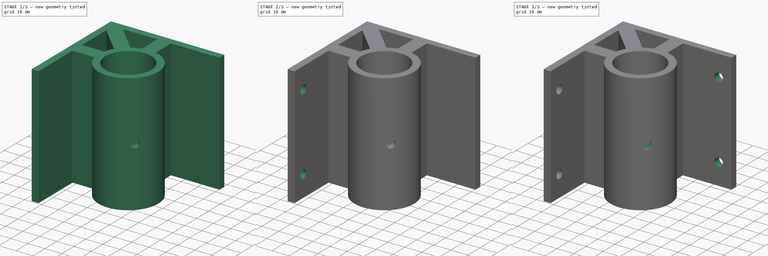
[diagram: build sequence overview — one tinted view per stage of 3, left to right]
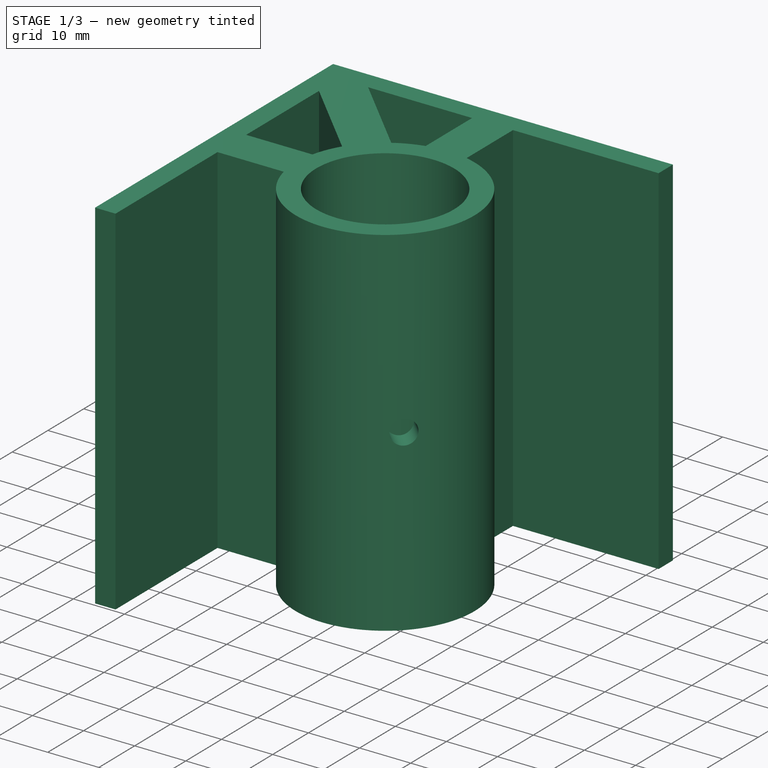
[diagram: stage 1 of 3 — iso view after this stage's code; geometry added in this stage tinted green]
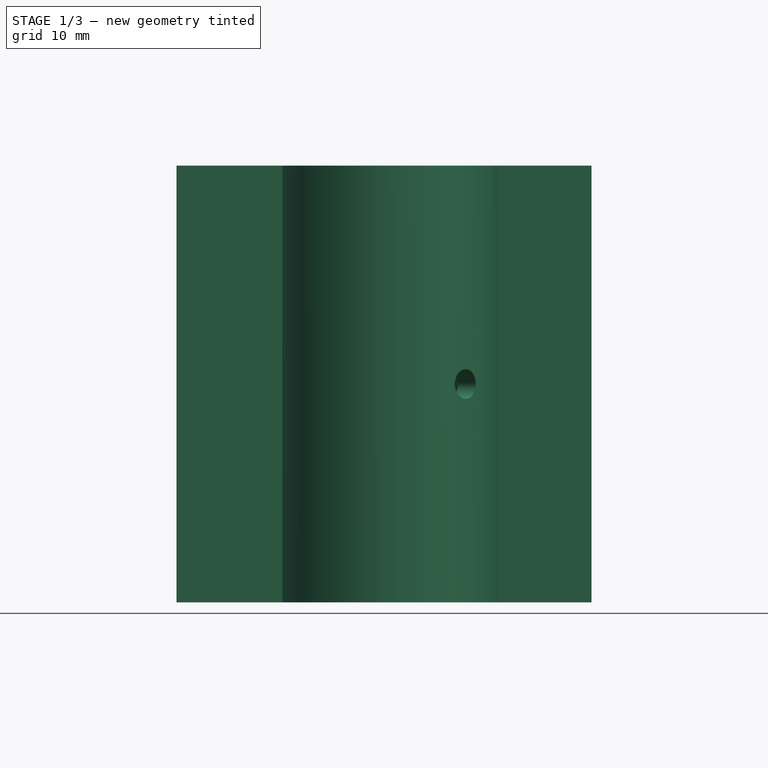
[diagram: stage 1 of 3 — front view after this stage's code; geometry added in this stage tinted green]
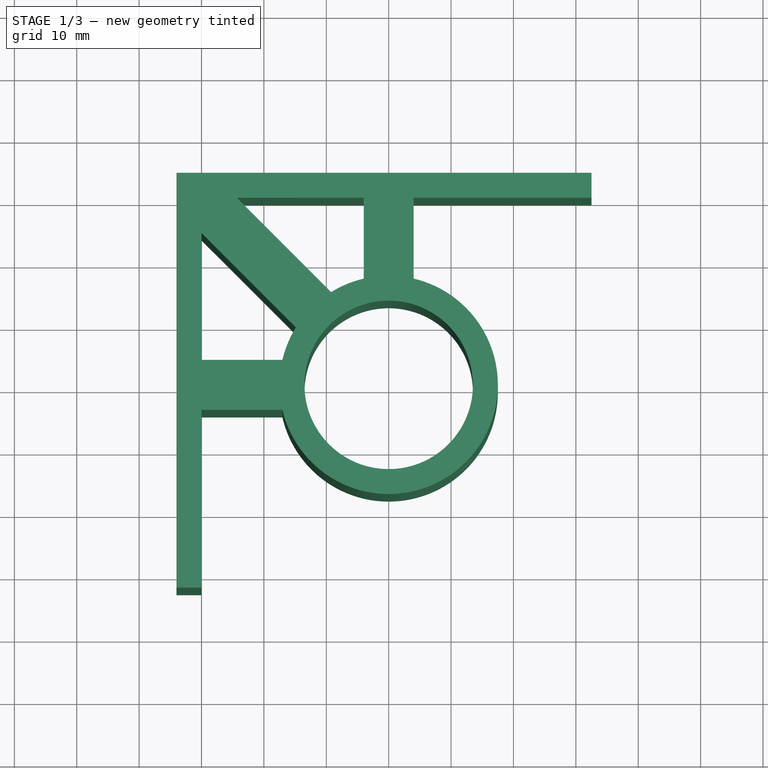
[diagram: stage 1 of 3 — top view after this stage's code; geometry added in this stage tinted green]
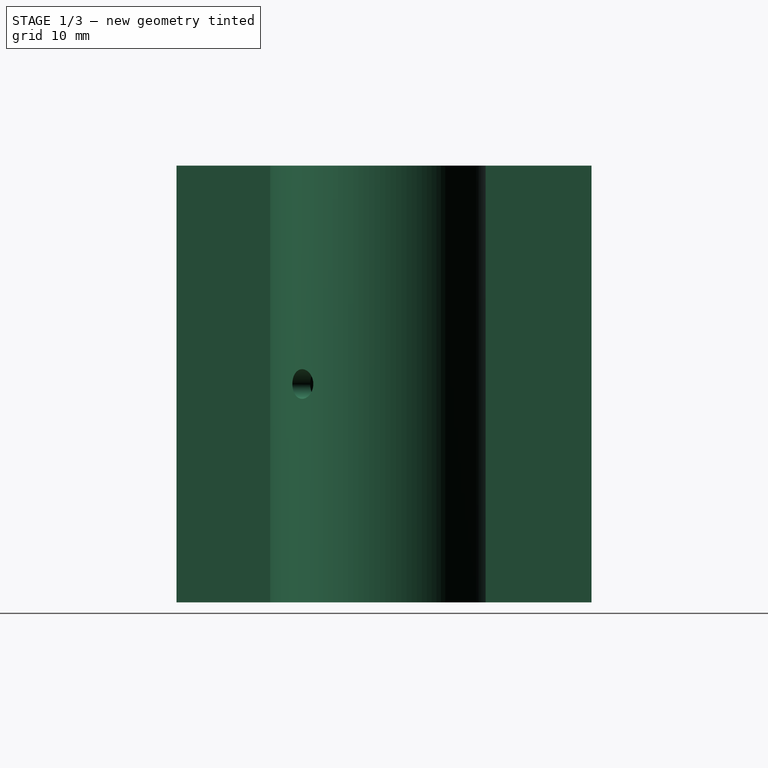
[diagram: stage 1 of 3 — right view after this stage's code; geometry added in this stage tinted green]
FCSTD DOCUMENT  (FreeCAD 2022.407R26244 +4693 (Git))
Label: flag pole mount
License: Creative Commons Attribution
LicenseURL: http://creativecommons.org/licenses/by/4.0/
objects: Sketcher::SketchObject×7, PartDesign::Pocket×3, PartDesign::Plane×2, PartDesign::Pad×1, PartDesign::Line×1, PartDesign::SubtractiveHelix×1, PartDesign::Body×1
note: 26 computed .brp shape members not serialized (recipe doc carries the construction recipe); baked Part::Feature solids carry a one-line shape summary decoded from their .brp

FEATURE [Sketcher::SketchObject] Sketch
  FullyConstrained = true
  MapMode = 5
  Support = -> [XY_Plane]
  TreeRank = 0
  sketch-geometry (26):
    g0: Circle CenterX=0 CenterY=0 CenterZ=0 NormalX=0 NormalY=0 NormalZ=1 AngleXU=0 Radius=13.5
    g1: ArcOfCircle CenterX=0 CenterY=0 CenterZ=0 NormalX=0 NormalY=0 NormalZ=1 AngleXU=0 Radius=17.5 StartAngle=3.3722 EndAngle=7.62337
    g2: LineSegment StartX=-30 StartY=-17.5 StartZ=0 EndX=-30 EndY=-4 EndZ=0
    g3: LineSegment StartX=-24.3431 StartY=30 StartZ=0 EndX=-4 EndY=30 EndZ=0
    g4: LineSegment [constr] StartX=-30 StartY=-17.5 StartZ=0 EndX=17.5 EndY=-17.5 EndZ=0
    g5: LineSegment [constr] StartX=17.5 StartY=-17.5 StartZ=0 EndX=17.5 EndY=30 EndZ=0
    g6: GeomPoint [constr] X=17.5 Y=0 Z=0
    g7: GeomPoint [constr] X=0 Y=-17.5 Z=0
    g8: LineSegment StartX=17.5 StartY=30 StartZ=0 EndX=32.5 EndY=30 EndZ=0
    g9: LineSegment StartX=32.5 StartY=30 StartZ=0 EndX=32.5 EndY=34 EndZ=0
    g10: LineSegment StartX=32.5 StartY=34 StartZ=0 EndX=-34 EndY=34 EndZ=0
    g11: LineSegment StartX=-34 StartY=34 StartZ=0 EndX=-34 EndY=-32.5 EndZ=0
    g12: LineSegment StartX=-30 StartY=-17.5 StartZ=0 EndX=-30 EndY=-32.5 EndZ=0
    g13: LineSegment StartX=-30 StartY=-32.5 StartZ=0 EndX=-34 EndY=-32.5 EndZ=0
    g14: LineSegment StartX=-30 StartY=4 StartZ=0 EndX=-17.0367 EndY=4 EndZ=0
    g15: LineSegment StartX=-30 StartY=-4 StartZ=0 EndX=-17.0367 EndY=-4 EndZ=0
    g16: LineSegment StartX=-30 StartY=4 StartZ=0 EndX=-30 EndY=24.3431 EndZ=0
    g17: LineSegment [constr] StartX=-30 StartY=4 StartZ=0 EndX=-30 EndY=-4 EndZ=0
    g18: LineSegment StartX=-4 StartY=30 StartZ=0 EndX=-4 EndY=17.0367 EndZ=0
    g19: LineSegment StartX=4 StartY=17.0367 StartZ=0 EndX=4 EndY=30 EndZ=0
    g20: LineSegment StartX=4 StartY=30 StartZ=0 EndX=17.5 EndY=30 EndZ=0
    g21: ArcOfCircle CenterX=0 CenterY=0 CenterZ=0 NormalX=0 NormalY=0 NormalZ=1 AngleXU=0 Radius=17.5 StartAngle=1.80141 EndAngle=2.12558
    g22: LineSegment [constr] StartX=-4 StartY=30 StartZ=0 EndX=4 EndY=30 EndZ=0
    g23: LineSegment StartX=-30 StartY=24.3431 StartZ=0 EndX=-14.8752 EndY=9.21836 EndZ=0
    g24: LineSegment StartX=-24.3431 StartY=30 StartZ=0 EndX=-9.21836 EndY=14.8752 EndZ=0
    g25: ArcOfCircle CenterX=0 CenterY=0 CenterZ=0 NormalX=0 NormalY=0 NormalZ=1 AngleXU=0 Radius=17.5 StartAngle=2.5868 EndAngle=2.91098
  constraints (72):
    c: Coincident(g0,g-1)
    c: Radius(g0) = 13.5
    c: Coincident(g1,g0)
    c: Radius(g1) = 17.5
    c: Vertical(g2)
    c: Horizontal(g3)
    c: Coincident(g4,g2)
    c: Horizontal(g4)
    c: Coincident(g5,g4)
    c: Coincident(g5,g20)
    c: Vertical(g5)
    c: PointOnObject(g6,g1)
    c: PointOnObject(g7,g1)
    c: PointOnObject(g7,g-2)
    c: PointOnObject(g7,g4)
    c: PointOnObject(g6,g-1)
    c: PointOnObject(g6,g5)
    c: DistanceX(g2,g7) = 30
    c: DistanceY(g0,g20) = 30
    c: Coincident(g8,g20)
    c: Horizontal(g8)
    c: Coincident(g9,g8)
    c: Vertical(g9)
    c: Coincident(g10,g9)
    c: Horizontal(g10)
    c: Coincident(g11,g10)
    c: Vertical(g11)
    c: Coincident(g12,g2)
    c: Vertical(g12)
    c: Coincident(g13,g12)
    c: Horizontal(g13)
    c: Equal(g13,g9)
    c: Distance(g9) = 4
    c: Equal(g12,g8)
    c: Distance(g12) = 15
    c: Coincident(g11,g13)
    c: Horizontal(g14)
    c: Horizontal(g15)
    c: Equal(g15,g14)
    c: DistanceY(g15,g14) = 8
    c: Coincident(g2,g15)
    c: Coincident(g16,g14)
    c: Coincident(g25,g14)
    c: Coincident(g1,g15)
    c: Vertical(g16)
    c: Coincident(g17,g14)
    c: Coincident(g17,g2)
    c: Vertical(g17)
    c: Vertical(g18)
    c: Vertical(g19)
    c: Equal(g19,g18)
    c: DistanceX(g18,g19) = 8
    c: Coincident(g3,g18)
    c: Coincident(g20,g19)
    c: Equal(g1,g21)
    c: Coincident(g1,g19)
    c: Coincident(g21,g18)
    c: Coincident(g1,g21)
    c: Coincident(g22,g3)
    c: Coincident(g22,g19)
    c: Horizontal(g22)
    c: Horizontal(g20)
    c: Parallel(g23,g24)
    c: Equal(g24,g23)
    c: Angle(g16,g23) = 0.785398
    c: Distance(g23,g24) = 8
    c: Coincident(g16,g23)
    c: Coincident(g3,g24)
    c: Equal(g21,g25)
    c: Coincident(g21,g24)
    c: Coincident(g25,g23)
    c: Coincident(g21,g25)
FEATURE [PartDesign::Pad] Pad
  AddSubType = 0
  CheckUpToFaceLimits = true
  ClaimChildren = false
  Direction = (0,0,1)
  Fit = 0
  FitJoin = 0
  InnerFit = 0
  InnerFitJoin = 0
  InnerTaperAngle = 0
  InnerTaperAngleRev = 0
  Length = 70
  Length2 = 100
  NewSolid = false
  Profile = -> Sketch
  Suppress = false
  TreeRank = 0
  Type = 0
  _ProfileBasedVersion = 0
FEATURE [Sketcher::SketchObject] Sketch001
  ExternalGeometry = -> [Pad]
  FullyConstrained = true
  MapMode = 5
  Placement = pos=(0,0,70) rot=(0,0,1;0rad)
  Support = -> [Pad]
  TreeRank = 0
  sketch-geometry (4):
    g0: LineSegment [constr] StartX=-34 StartY=34 StartZ=0 EndX=12.3744 EndY=-12.3744 EndZ=0
    g1: LineSegment StartX=22.8927 StartY=-1.85601 StartZ=0 EndX=1.85601 EndY=-22.8927 EndZ=0
    g2: LineSegment [constr] StartX=-34 StartY=12.9633 StartZ=0 EndX=1.85601 EndY=-22.8927 EndZ=0
    g3: LineSegment [constr] StartX=22.8927 StartY=-1.85601 StartZ=0 EndX=-12.9633 EndY=34 EndZ=0
  constraints (13):
    c: Coincident(g0,g-5)
    c: PointOnObject(g0,g-3)
    c: PointOnObject(g-1,g0)
    c: Coincident(g2,g1)
    c: Coincident(g3,g1)
    c: PointOnObject(g3,g-4)
    c: PointOnObject(g2,g-5)
    c: PointOnObject(g-3,g2)
    c: PointOnObject(g-3,g3)
    c: Parallel(g2,g0)
    c: Parallel(g0,g3)
    c: Equal(g3,g2)
    c: PointOnObject(g0,g1)
FEATURE [Sketcher::SketchObject] Sketch002
  AttachmentOffset = pos=(0,0,-3) rot=(0,0,1;0rad)
  ExternalGeometry = -> [Pad]
  FullyConstrained = true
  MapMode = 5
  Placement = pos=(0,0,67) rot=(0,0,1;0rad)
  Support = -> [Pad]
  TreeRank = 0
  sketch-geometry (4):
    g0: LineSegment [constr] StartX=-34 StartY=34 StartZ=0 EndX=12.3744 EndY=-12.3744 EndZ=0
    g1: LineSegment StartX=22.8927 StartY=-1.85601 StartZ=0 EndX=1.85601 EndY=-22.8927 EndZ=0
    g2: LineSegment [constr] StartX=-34 StartY=12.9633 StartZ=0 EndX=1.85601 EndY=-22.8927 EndZ=0
    g3: LineSegment [constr] StartX=22.8927 StartY=-1.85601 StartZ=0 EndX=-12.9633 EndY=34 EndZ=0
  constraints (13):
    c: Coincident(g0,g-5)
    c: PointOnObject(g0,g-3)
    c: PointOnObject(g-1,g0)
    c: Coincident(g2,g1)
    c: Coincident(g3,g1)
    c: PointOnObject(g3,g-4)
    c: PointOnObject(g2,g-5)
    c: PointOnObject(g-3,g2)
    c: PointOnObject(g-3,g3)
    c: Parallel(g2,g0)
    c: Parallel(g0,g3)
    c: Equal(g3,g2)
    c: PointOnObject(g0,g1)
FEATURE [PartDesign::Plane] DatumPlane
  Length = 113.904
  MapMode = 45
  MinimumLength = 10
  MinimumWidth = 10
  Placement = pos=(12.3744,-12.3744,68.5) rot=(0.678598,-0.281085,0.678598;2.59356rad)
  ResizeMode = 0
  Support = -> [Sketch002,Sketch001]
  TreeRank = 0
  Width = 112.949
FEATURE [Sketcher::SketchObject] Sketch003
  ExternalGeometry = -> [Pad]
  FullyConstrained = true
  MapMode = 5
  Placement = pos=(12.3744,-12.3744,68.5) rot=(0.678598,-0.281085,0.678598;2.59356rad)
  Support = -> [DatumPlane]
  TreeRank = 0
  sketch-geometry (3):
    g0: Circle CenterX=-33.5 CenterY=0 CenterZ=0 NormalX=0 NormalY=0 NormalZ=1 AngleXU=0 Radius=2.375
    g1: LineSegment [constr] StartX=-33.5 StartY=0 StartZ=0 EndX=1.5 EndY=0 EndZ=0
    g2: LineSegment [constr] StartX=-33.5 StartY=0 StartZ=0 EndX=-68.5 EndY=0 EndZ=0
  constraints (9):
    c: PointOnObject(g0,g-1)
    c: Radius(g0) = 2.375
    c: Coincident(g1,g0)
    c: PointOnObject(g1,g-3)
    c: Horizontal(g1)
    c: Coincident(g2,g0)
    c: PointOnObject(g2,g-4)
    c: Horizontal(g2)
    c: Equal(g2,g1)
FEATURE [PartDesign::Pocket] Pocket
  AddSubType = 1
  BaseFeature = -> Pad
  CheckUpToFaceLimits = true
  ClaimChildren = false
  Fit = 0
  FitJoin = 0
  InnerFit = 0
  InnerFitJoin = 0
  InnerTaperAngle = 0
  InnerTaperAngleRev = 0
  Length = 5
  Length2 = 100
  NewSolid = false
  Profile = -> Sketch003
  Suppress = false
  TreeRank = 0
  Type = 0
  _ProfileBasedVersion = 0
  _Version = 0
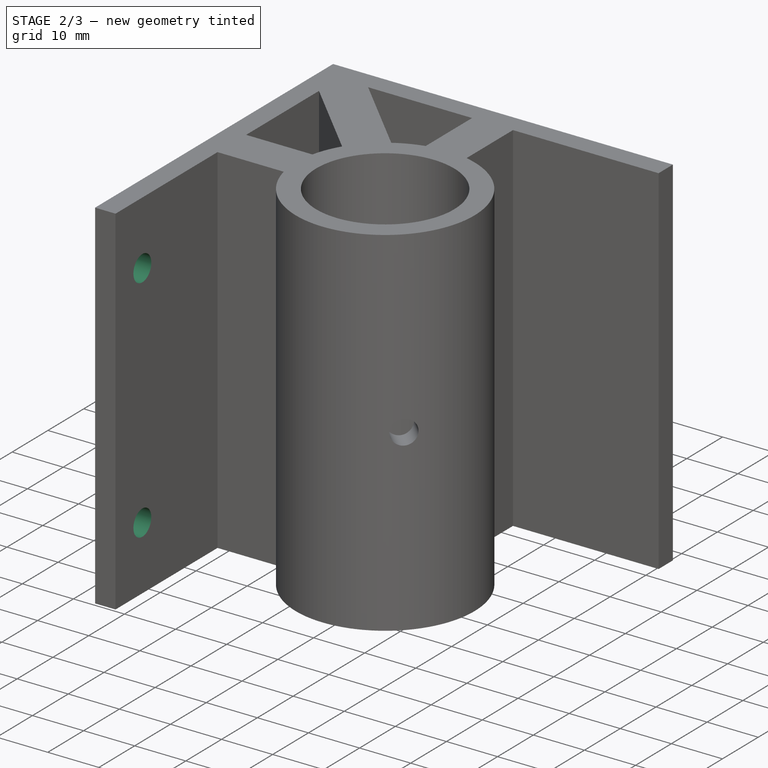
[diagram: stage 2 of 3 — iso view after this stage's code; geometry added in this stage tinted green]
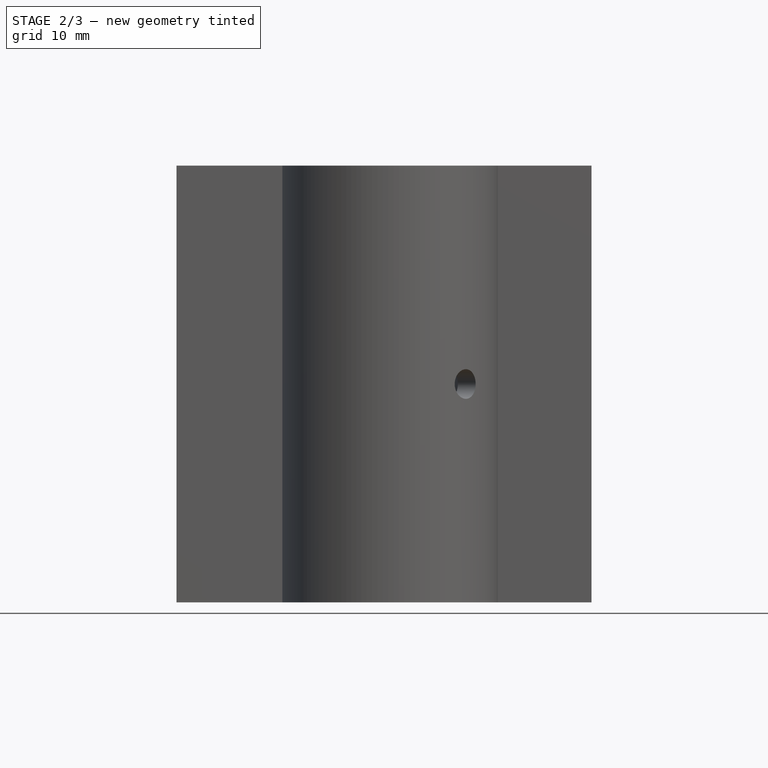
[diagram: stage 2 of 3 — front view after this stage's code; geometry added in this stage tinted green]
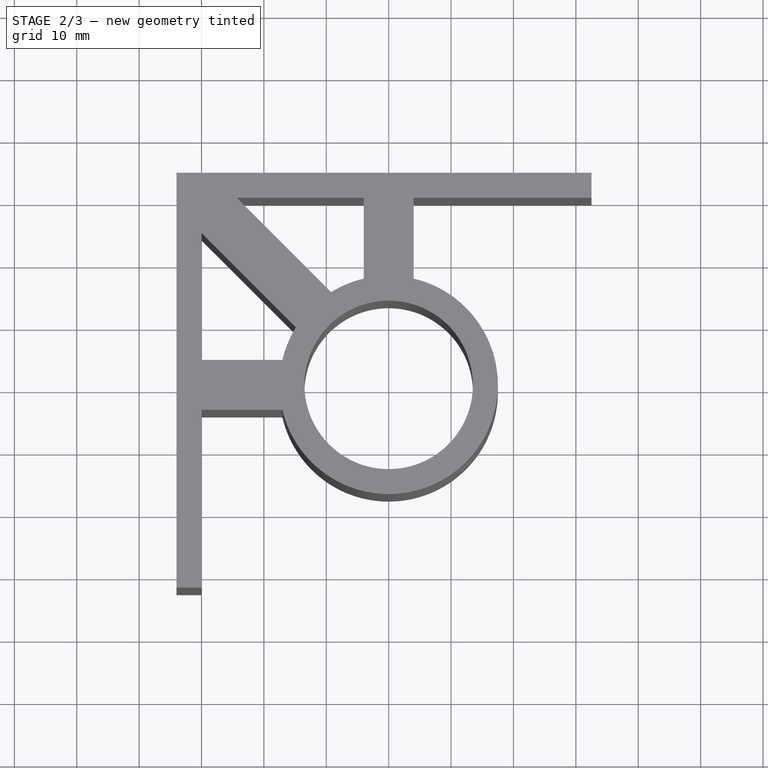
[diagram: stage 2 of 3 — top view after this stage's code; geometry added in this stage tinted green]
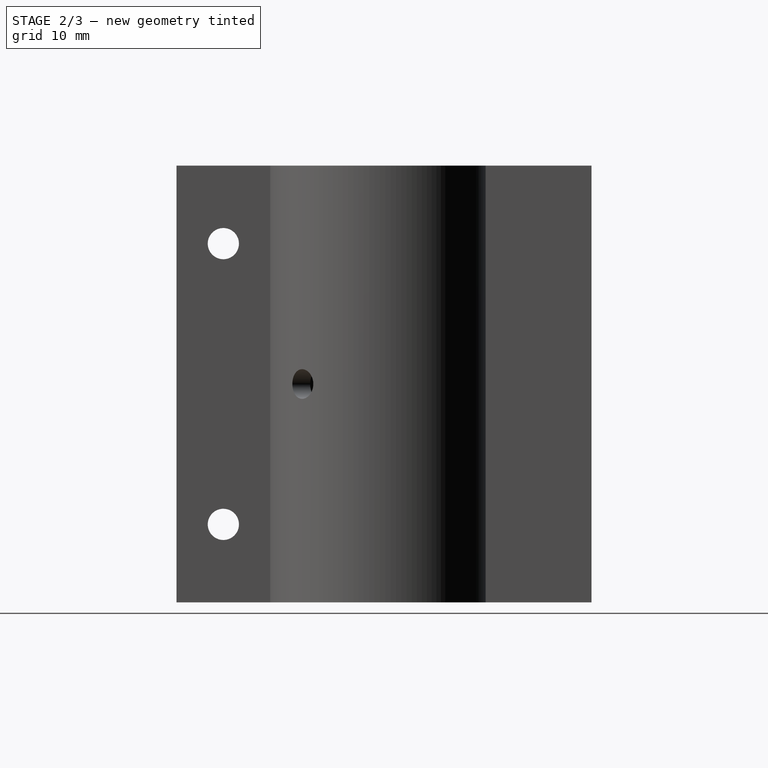
[diagram: stage 2 of 3 — right view after this stage's code; geometry added in this stage tinted green]
FEATURE [Sketcher::SketchObject] Sketch004
  ExternalGeometry = -> [Pocket]
  FullyConstrained = true
  MapMode = 5
  Placement = pos=(-30,0,0) rot=(0.57735,0.57735,0.57735;2.0944rad)
  Support = -> [Pocket]
  TreeRank = 0
  sketch-geometry (7):
    g0: Circle CenterX=-25 CenterY=57.5 CenterZ=0 NormalX=0 NormalY=0 NormalZ=1 AngleXU=0 Radius=2.5
    g1: Circle CenterX=-25 CenterY=12.5 CenterZ=0 NormalX=0 NormalY=0 NormalZ=1 AngleXU=0 Radius=2.5
    g2: LineSegment [constr] StartX=-25 StartY=57.5 StartZ=0 EndX=-25 EndY=70 EndZ=0
    g3: LineSegment [constr] StartX=-25 StartY=57.5 StartZ=0 EndX=-25 EndY=12.5 EndZ=0
    g4: LineSegment [constr] StartX=-25 StartY=12.5 StartZ=0 EndX=-25 EndY=0 EndZ=0
    g5: LineSegment [constr] StartX=-25 StartY=12.5 StartZ=0 EndX=-32.5 EndY=12.5 EndZ=0
    g6: LineSegment [constr] StartX=-25 StartY=12.5 StartZ=0 EndX=-17.5 EndY=12.5 EndZ=0
  constraints (20):
    c: Radius(g1) = 2.5
    c: Equal(g1,g0)
    c: Coincident(g2,g0)
    c: PointOnObject(g2,g-4)
    c: Vertical(g2)
    c: Coincident(g3,g0)
    c: Coincident(g3,g1)
    c: Vertical(g3)
    c: Coincident(g4,g1)
    c: PointOnObject(g4,g-6)
    c: Vertical(g4)
    c: Coincident(g5,g1)
    c: PointOnObject(g5,g-3)
    c: Horizontal(g5)
    c: Coincident(g6,g1)
    c: PointOnObject(g6,g-5)
    c: Horizontal(g6)
    c: Equal(g6,g5)
    c: Equal(g2,g4)
    c: Distance(g3) = 45
FEATURE [Sketcher::SketchObject] Sketch005
  ExternalGeometry = -> [Pocket]
  FullyConstrained = true
  MapMode = 5
  Placement = pos=(0,30,0) rot=(1,0,0;1.5708rad)
  Support = -> [Pocket]
  TreeRank = 0
  sketch-geometry (7):
    g0: Circle CenterX=25 CenterY=57.5 CenterZ=0 NormalX=0 NormalY=0 NormalZ=1 AngleXU=0 Radius=2.5
    g1: Circle CenterX=25 CenterY=12.5 CenterZ=0 NormalX=0 NormalY=0 NormalZ=1 AngleXU=0 Radius=2.5
    g2: LineSegment [constr] StartX=25 StartY=70 StartZ=0 EndX=25 EndY=57.5 EndZ=0
    g3: LineSegment [constr] StartX=25 StartY=57.5 StartZ=0 EndX=25 EndY=12.5 EndZ=0
    g4: LineSegment [constr] StartX=25 StartY=12.5 StartZ=0 EndX=25 EndY=0 EndZ=0
    g5: LineSegment [constr] StartX=25 StartY=12.5 StartZ=0 EndX=32.5 EndY=12.5 EndZ=0
    g6: LineSegment [constr] StartX=25 StartY=12.5 StartZ=0 EndX=17.5 EndY=12.5 EndZ=0
  constraints (20):
    c: PointOnObject(g2,g-5)
    c: Coincident(g2,g0)
    c: Coincident(g3,g0)
    c: Coincident(g3,g1)
    c: Vertical(g3)
    c: Coincident(g4,g1)
    c: PointOnObject(g4,g-6)
    c: Vertical(g4)
    c: Coincident(g5,g1)
    c: PointOnObject(g5,g-4)
    c: Horizontal(g5)
    c: Coincident(g6,g1)
    c: PointOnObject(g6,g-3)
    c: Horizontal(g6)
    c: Vertical(g2)
    c: Equal(g5,g6)
    c: Equal(g4,g2)
    c: Distance(g3) = 45
    c: Radius(g0) = 2.5
    c: Equal(g1,g0)
FEATURE [PartDesign::Pocket] Pocket001
  AddSubType = 1
  BaseFeature = -> Pocket
  CheckUpToFaceLimits = true
  ClaimChildren = false
  Fit = 0
  FitJoin = 0
  InnerFit = 0
  InnerFitJoin = 0
  InnerTaperAngle = 0
  InnerTaperAngleRev = 0
  Length = 5
  Length2 = 100
  NewSolid = false
  Profile = -> Sketch004
  Suppress = false
  TreeRank = 0
  Type = 0
  _ProfileBasedVersion = 0
  _Version = 0
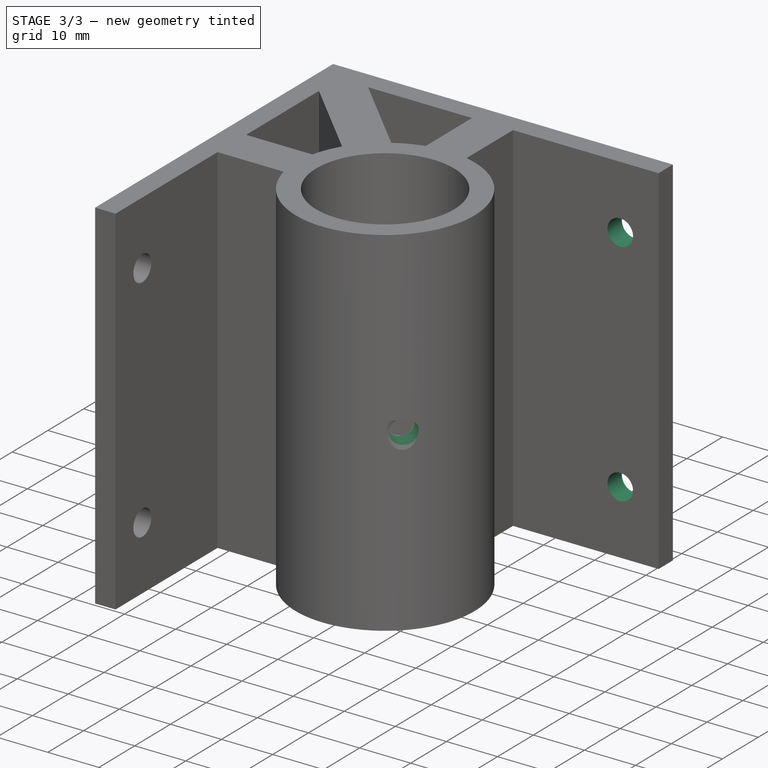
[diagram: stage 3 of 3 — iso view after this stage's code; geometry added in this stage tinted green]
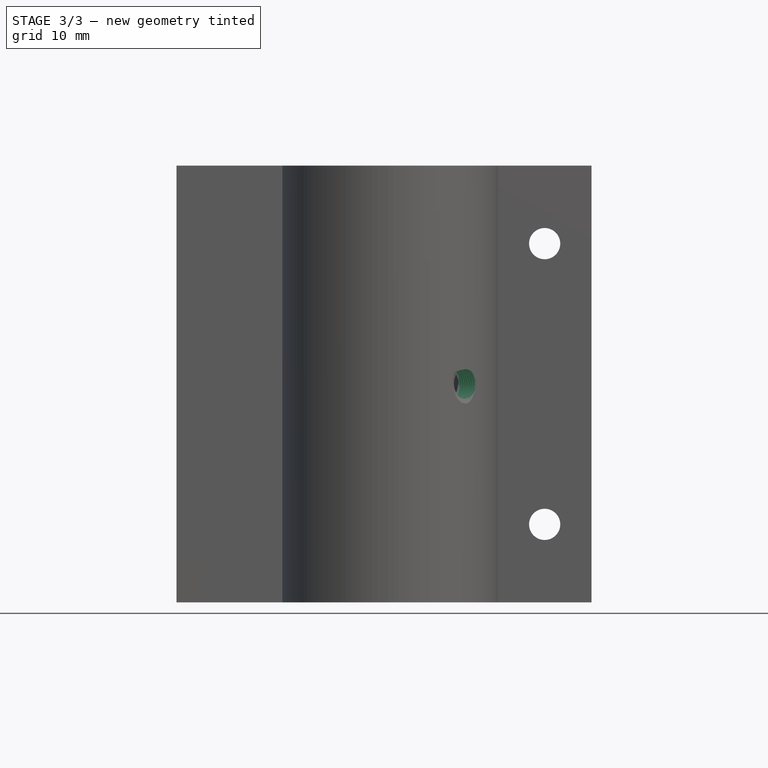
[diagram: stage 3 of 3 — front view after this stage's code; geometry added in this stage tinted green]
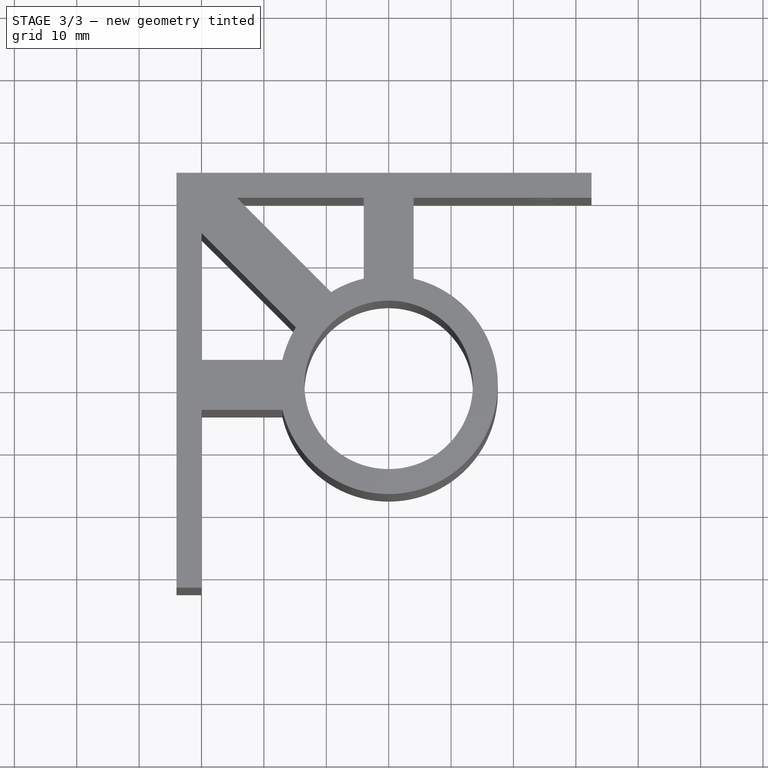
[diagram: stage 3 of 3 — top view after this stage's code; geometry added in this stage tinted green]
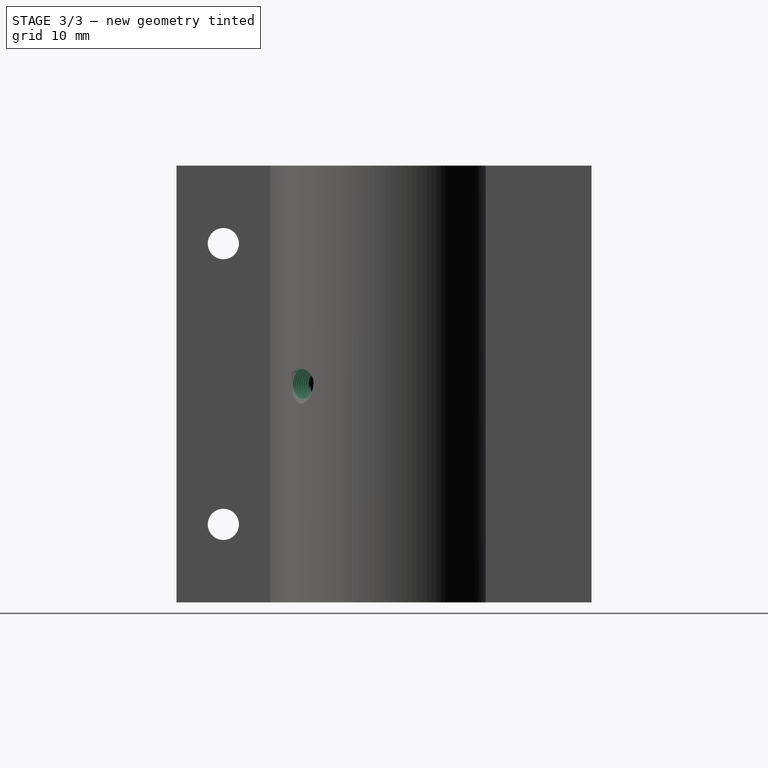
[diagram: stage 3 of 3 — right view after this stage's code; geometry added in this stage tinted green]
FEATURE [PartDesign::Pocket] Pocket002
  AddSubType = 1
  BaseFeature = -> Pocket001
  CheckUpToFaceLimits = true
  ClaimChildren = false
  Fit = 0
  FitJoin = 0
  InnerFit = 0
  InnerFitJoin = 0
  InnerTaperAngle = 0
  InnerTaperAngleRev = 0
  Length = 5
  Length2 = 100
  NewSolid = false
  Profile = -> Sketch005
  Suppress = false
  TreeRank = 0
  Type = 0
  _ProfileBasedVersion = 0
  _Version = 0
FEATURE [PartDesign::Plane] DatumPlane001
  Length = 85.236
  MapMode = 8
  MinimumLength = 10
  MinimumWidth = 10
  Placement = pos=(9.54594,-9.54594,32.625) rot=(0.713406,0.225089,-0.663616;2.47664rad)
  ResizeMode = 0
  Support = -> [Pocket002]
  TreeRank = 1
  Width = 104.751
FEATURE [Sketcher::SketchObject] Sketch006
  ExternalGeometry = -> [Pocket002]
  FullyConstrained = true
  MapMode = 5
  Placement = pos=(9.54594,-9.54594,32.625) rot=(0.713406,0.225089,-0.663616;2.47664rad)
  Support = -> [DatumPlane001]
  TreeRank = 6
  sketch-geometry (4):
    g0: LineSegment [constr] StartX=32.1316 StartY=-5.65276 StartZ=0 EndX=-36.8097 EndY=6.47576 EndZ=0
    g1: LineSegment StartX=-0.0560377 StartY=0.258621 StartZ=0 EndX=-0.140937 EndY=-0.223968 EndZ=0
    g2: LineSegment StartX=-0.0560377 StartY=0.258621 StartZ=0 EndX=0.738656 EndY=-0.129948 EndZ=0
    g3: LineSegment StartX=0.738656 StartY=-0.129948 StartZ=0 EndX=-0.140937 EndY=-0.223968 EndZ=0
  constraints (13):
    c: PointOnObject(g0,g-4)
    c: PointOnObject(g0,g-3)
    c: PointOnObject(g-1,g0)
    c: Parallel(g0,g-5)
    c: Coincident(g2,g1)
    c: PointOnObject(g2,g0)
    c: Coincident(g3,g2)
    c: Perpendicular(g0,g1)
    c: Equal(g3,g2)
    c: Coincident(g3,g1)
    c: Distance(g-1,g2) = 0.75
    c: Distance(g1) = 0.49
    c: Distance(g-1,g1) = 0.1
FEATURE [PartDesign::Line] DatumLine
  AttacherType = Attacher::AttachEngineLine
  Length = 20.1914
  MapMode = 42
  MinimumLength = 10
  Placement = pos=(8.5926e-05,-0.000332386,35.0001) rot=(0.862854,0.357412,0.357408;1.71778rad)
  ResizeMode = 0
  Support = -> [Pocket002]
  TreeRank = 5
FEATURE [PartDesign::SubtractiveHelix] Helix
  AddSubType = 1
  Angle = 0
  Axis = (0.707115,-0.707099,-8.45108e-06)
  Base = (8.5926e-05,-0.000332386,35.0001)
  BaseFeature = -> Pocket002
  ClaimChildren = false
  Fit = 0
  FitJoin = 0
  Growth = 0
  HasBeenEdited = true
  Height = 6
  InnerFit = 0
  InnerFitJoin = 0
  LeftHanded = false
  Linearize = true
  Mode = 0
  NewSolid = false
  Outside = false
  Pitch = 0.5
  Profile = -> Sketch006
  ReferenceAxis = -> DatumLine
  Suppress = false
  TreeRank = 7
  Turns = 12
  _ProfileBasedVersion = 1
FEATURE [PartDesign::Body] Body
  AutoGroupSolids = false
  ExportMode = 0
  Group = -> [Sketch,Pad,Sketch001,Sketch002,DatumPlane,Sketch003,Pocket,Sketch004,Sketch005,Pocket001,Pocket002,DatumPlane001,Sketch006,DatumLine,Helix]
  Origin = -> Origin
  Tip = -> Helix
  TreeRank = 0
  _ExportChildren = -> [Pad,Sketch001,Sketch002,DatumPlane,Pocket,Pocket001,Pocket002,DatumPlane001,DatumLine,Helix]
  _GroupVersion = 1
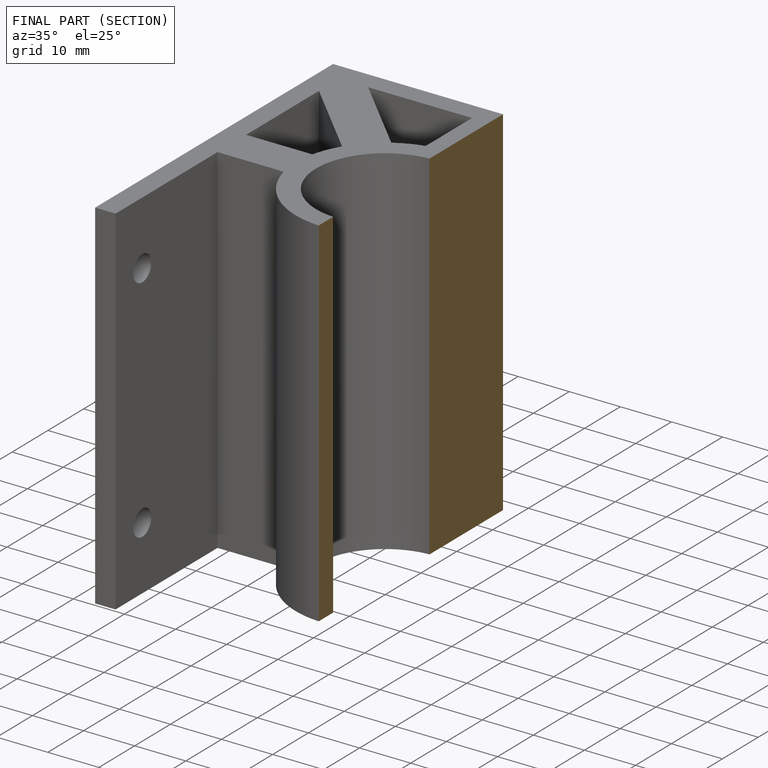
[diagram: finished part — half-section view (interior)]
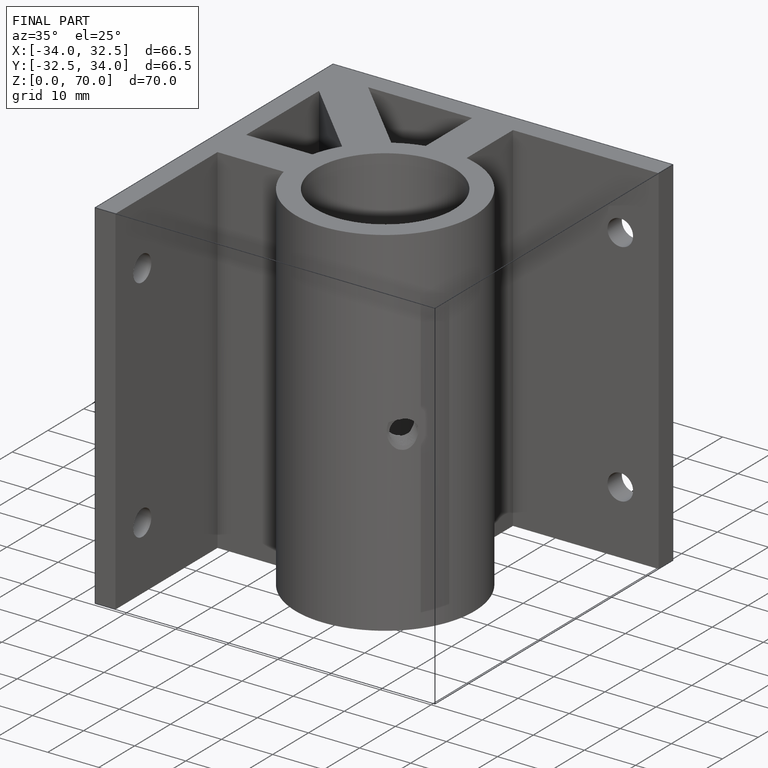
[diagram: finished part — iso view with bounding-box wireframe]
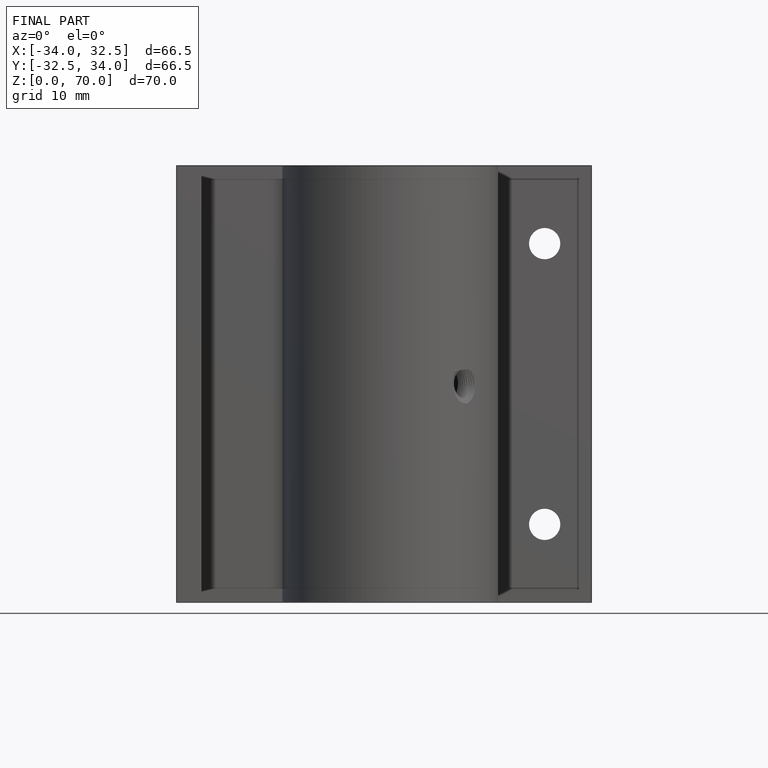
[diagram: finished part — front view with bounding-box wireframe]
